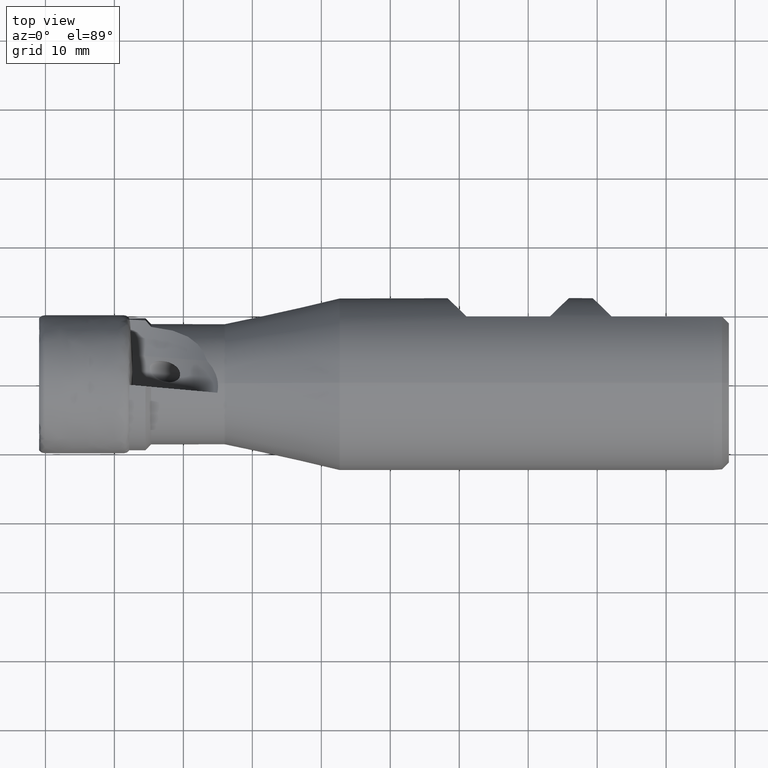
[diagram: clean part render]
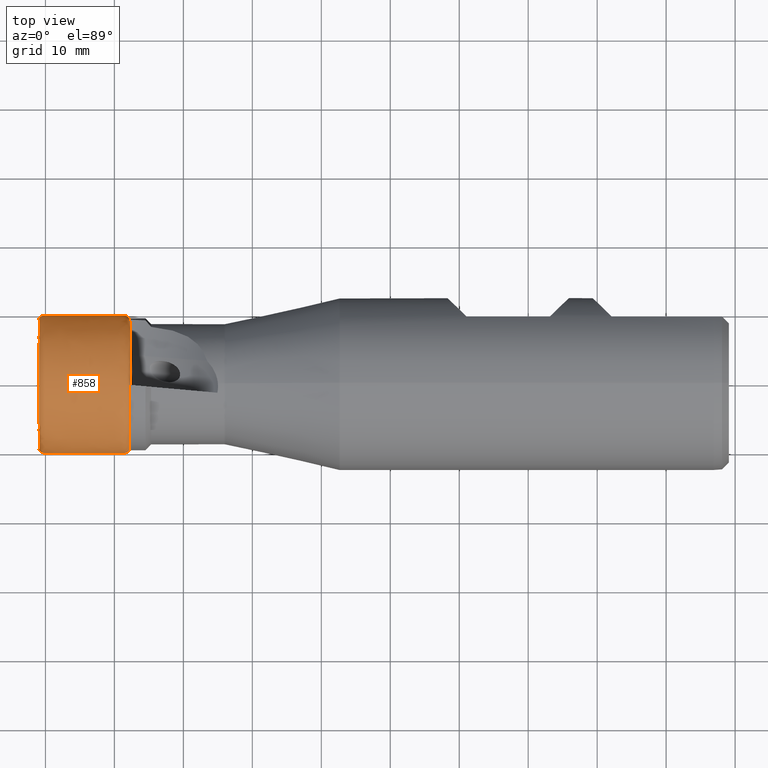
[diagram: same view with one face highlighted and labeled with its STEP entity id]
A machine part, top view. The second image highlights one B-rep face of the part: STEP entity #858.
In plain terms, the highlighted face is a freeform B-spline surface patch.
Its self-contained STEP definition (entity closure, byte-faithful):
#32 = CIRCLE ( 'NONE', #686, 7.691889727590408100 ) ;
#57 = CARTESIAN_POINT ( 'NONE',  ( -0.05130228346304541200, -10.00000000000000900, 0.0000000000000000000 ) ) ;
#59 = CARTESIAN_POINT ( 'NONE',  ( -0.5466303632215991900, -9.919945795277909500, 0.0000000000000000000 ) ) ;
#63 = CARTESIAN_POINT ( 'NONE',  ( -0.8445255185963951300, -9.661851155455348600, 0.0000000000000000000 ) ) ;
#64 = CARTESIAN_POINT ( 'NONE',  ( -0.7201086894092299000, -9.818137838423476500, 0.0000000000000000000 ) ) ;
#68 = CARTESIAN_POINT ( 'NONE',  ( 3.784776364722183000, -10.00000000000000400, 0.0000000000000000000 ) ) ;
#74 = CARTESIAN_POINT ( 'NONE',  ( -0.01417237308350225600, -10.00000000000000500, 0.0000000000000000000 ) ) ;
#75 = CARTESIAN_POINT ( 'NONE',  ( 11.41736329141492400, -10.00000000000000400, 0.0000000000000000000 ) ) ;
#77 = CARTESIAN_POINT ( 'NONE',  ( -0.9177133815105559300, -9.577886396108395300, 0.0000000000000000000 ) ) ;
#84 = DIRECTION ( 'NONE',  ( 1.000000000000000000, 0.0000000000000000000, 0.0000000000000000000 ) ) ;
#99 = CARTESIAN_POINT ( 'NONE',  ( 12.14808933975809100, 0.0000000000000000000, 0.0000000000000000000 ) ) ;
#108 = CARTESIAN_POINT ( 'NONE',  ( -0.3452762788435975200, -9.954841906388610400, 0.0000000000000000000 ) ) ;
#115 = CARTESIAN_POINT ( 'NONE',  ( -0.1255621042221242400, -10.00000000000000500, 0.0000000000000000000 ) ) ;
#117 = CARTESIAN_POINT ( 'NONE',  ( -0.9058620806264562300, -8.316042971592716900, 0.0000000000000000000 ) ) ;
#121 = CARTESIAN_POINT ( 'NONE',  ( -0.2346917990589160200, -9.969069199453155500, 0.0000000000000000000 ) ) ;
#143 = DIRECTION ( 'NONE',  ( 0.0000000000000000000, 0.0000000000000000000, 1.000000000000000000 ) ) ;
#154 = CARTESIAN_POINT ( 'NONE',  ( 11.48225309698175200, -9.969764362213865600, 0.0000000000000000000 ) ) ;
#155 = CARTESIAN_POINT ( 'NONE',  ( 11.47070769610457800, -9.970404803346081500, 0.0000000000000000000 ) ) ;
#158 = CARTESIAN_POINT ( 'NONE',  ( 11.44759087466905400, -9.971216621968771700, 0.0000000000000000000 ) ) ;
#171 = CARTESIAN_POINT ( 'NONE',  ( -0.9000000000000130100, -7.691889727590408100, 0.0000000000000000000 ) ) ;
#181 = CARTESIAN_POINT ( 'NONE',  ( -0.9179676607729816400, -9.604960269130515400, 0.0000000000000000000 ) ) ;
#183 = CARTESIAN_POINT ( 'NONE',  ( -0.8692782993972447700, -9.629646146713087200, 0.0000000000000000000 ) ) ;
#197 = CARTESIAN_POINT ( 'NONE',  ( -0.9117241612528992300, -8.940196215595026500, 0.0000000000000000000 ) ) ;
#198 = CARTESIAN_POINT ( 'NONE',  ( -0.9175862418793429000, -9.564349459597332600, 0.0000000000000000000 ) ) ;
#214 = CARTESIAN_POINT ( 'NONE',  ( 11.39423699069401300, -10.00000000000000400, 0.0000000000000000000 ) ) ;
#235 = CARTESIAN_POINT ( 'NONE',  ( 11.38267384033355300, -10.00000000000000200, 0.0000000000000000000 ) ) ;
#273 = CARTESIAN_POINT ( 'NONE',  ( 7.583725102527868200, -10.00000000000000200, 0.0000000000000000000 ) ) ;
#276 = CARTESIAN_POINT ( 'NONE',  ( 12.00018036387650600, -9.815041897302331000, 0.0000000000000000000 ) ) ;
#286 = CARTESIAN_POINT ( 'NONE',  ( 11.75980453034533800, -9.954368157602008400, 0.0000000000000000000 ) ) ;
#300 = CARTESIAN_POINT ( 'NONE',  ( -0.8529570140672502200, -9.651259899688664500, 0.0000000000000000000 ) ) ;
#301 = CARTESIAN_POINT ( 'NONE',  ( 12.14808933975809100, -9.580000000000005400, 0.0000000000000000000 ) ) ;
#303 = CARTESIAN_POINT ( 'NONE',  ( -0.3086917194308283500, -9.961182273678144100, 0.0000000000000000000 ) ) ;
#366 = EDGE_LOOP ( 'NONE', ( #1300, #1244, #1308, #1265, #1203, #1299, #1223, #1269 ) ) ;
#488 =( BOUNDED_SURFACE ( )  B_SPLINE_SURFACE ( 3, 3, ( 
 ( #2492, #2386, #2385, #2383 ),
 ( #2380, #2381, #2379, #2514 ),
 ( #2519, #2517, #2513, #2523 ),
 ( #2522, #2395, #2526, #2391 ),
 ( #2389, #2527, #2529, #2531 ),
 ( #2534, #2525, #2524, #2390 ),
 ( #2516, #2637, #2635, #2634 ),
 ( #2905, #2947, #2944, #2954 ),
 ( #2958, #2961, #2911, #2875 ),
 ( #2951, #2825, #2811, #2876 ),
 ( #2670, #2649, #2866, #2752 ),
 ( #2737, #2718, #2807, #2795 ),
 ( #2779, #2833, #2837, #2908 ),
 ( #2869, #2873, #2877, #2883 ),
 ( #2851, #2856, #2784, #2781 ),
 ( #2772, #2806, #2797, #2796 ),
 ( #2844, #2889, #2812, #2909 ),
 ( #2675, #2676, #2659, #2747 ),
 ( #2750, #2661, #2655, #2660 ),
 ( #2733, #2735, #2738, #2653 ),
 ( #2723, #2667, #2764, #2924 ),
 ( #2720, #2753, #2762, #2761 ),
 ( #2701, #2704, #2707, #2894 ),
 ( #2916, #2931, #2934, #2904 ),
 ( #2930, #2895, #2896, #2898 ),
 ( #2899, #2900, #2933, #2882 ),
 ( #2880, #2902, #2887, #2886 ),
 ( #2885, #2855, #2853, #2852 ),
 ( #2860, #2859, #2857, #2865 ),
 ( #2864, #2863, #2874, #2867 ),
 ( #2868, #2878, #2879, #2872 ),
 ( #2828, #2827, #2826, #2832 ),
 ( #2831, #2830, #2836, #2835 ),
 ( #2834, #2839, #2840, #2841 ),
 ( #2881, #2891, #2907, #2818 ),
 ( #2845, #2846, #2800, #2799 ),
 ( #2804, #2783, #2787, #2791 ),
 ( #2767, #2771, #2775, #2756 ),
 ( #2759, #2763, #2741, #2745 ),
 ( #2748, #2722, #2726, #2730 ),
 ( #2706, #2710, #2714, #2690 ),
 ( #2694, #2698, #2674, #2678 ),
 ( #2682, #2658, #2662, #2666 ),
 ( #2871, #2850, #2654, #2862 ),
 ( #2870, #2842, #2843, #2815 ),
 ( #2854, #2816, #2838, #2821 ) ),
 .UNSPECIFIED., .F., .F., .F. ) 
 B_SPLINE_SURFACE_WITH_KNOTS ( ( 4, 3, 1, 1, 3, 3, 1, 1, 3, 3, 1, 1, 3, 3, 1, 1, 3, 1, 1, 3, 1, 1, 3, 4 ),
 ( 4, 4 ),
 ( 0.0000000000000000000, 0.05717233915428161100, 0.05841232041330309700, 0.05965230167232458300, 0.06089228293134606900, 0.07844484726710043700, 0.08176935253101479100, 0.08509385779492914500, 0.08841836305884349900, 0.4285652943893162900, 0.4296006255777793400, 0.4306359567662424400, 0.4316712879547055000, 0.4571860780026526500, 0.4587064572872698300, 0.4602268365718870100, 0.4617472158565041900, 0.4633482898806259900, 0.4649493639047477800, 0.4665504379288695800, 0.4696628735702409500, 0.4727753092116123700, 0.4758877448529837400, 0.5000000000000000000 ),
 ( 0.0000000000000000000, 1.000000000000000000 ),
 .UNSPECIFIED. ) 
 GEOMETRIC_REPRESENTATION_ITEM ( )  RATIONAL_B_SPLINE_SURFACE ( (
 ( 1.000000000000000000, 0.3333333333333334300, 0.3333333333333334300, 1.000000000000000000),
 ( 1.000000000000000000, 0.3333333333333334300, 0.3333333333333334300, 1.000000000000000000),
 ( 1.000000000000000000, 0.3333333333333334300, 0.3333333333333334300, 1.000000000000000000),
 ( 1.000000000000000000, 0.3333333333333334300, 0.3333333333333334300, 1.000000000000000000),
 ( 1.000000000000000000, 0.3333333333333334300, 0.3333333333333334300, 1.000000000000000000),
 ( 1.000000000000000000, 0.3333333333333334300, 0.3333333333333334300, 1.000000000000000000),
 ( 1.000000000000000000, 0.3333333333333334300, 0.3333333333333334300, 1.000000000000000000),
 ( 1.000000000000000000, 0.3333333333333334300, 0.3333333333333334300, 1.000000000000000000),
 ( 1.000000000000000000, 0.3333333333333334300, 0.3333333333333334300, 1.000000000000000000),
 ( 0.9592922465192552700, 0.3197640821730851600, 0.3197640821730851600, 0.9592922465192552700),
 ( 0.9592922465192552700, 0.3197640821730851600, 0.3197640821730851600, 0.9592922465192552700),
 ( 1.000000000000000000, 0.3333333333333334300, 0.3333333333333334300, 1.000000000000000000),
 ( 1.000000000000000000, 0.3333333333333334300, 0.3333333333333334300, 1.000000000000000000),
 ( 1.000000000000000000, 0.3333333333333334300, 0.3333333333333334300, 1.000000000000000000),
 ( 1.000000000000000000, 0.3333333333333334300, 0.3333333333333334300, 1.000000000000000000),
 ( 1.000000000000000000, 0.3333333333333334300, 0.3333333333333334300, 1.000000000000000000),
 ( 1.000000000000000000, 0.3333333333333334300, 0.3333333333333334300, 1.000000000000000000),
 ( 1.000000000000000000, 0.3333333333333334300, 0.3333333333333334300, 1.000000000000000000),
 ( 1.000000000000000000, 0.3333333333333334300, 0.3333333333333334300, 1.000000000000000000),
 ( 1.000000000000000000, 0.3333333333333334300, 0.3333333333333334300, 1.000000000000000000),
 ( 1.000000000000000000, 0.3333333333333334300, 0.3333333333333334300, 1.000000000000000000),
 ( 1.000000000000000000, 0.3333333333333334300, 0.3333333333333334300, 1.000000000000000000),
 ( 1.000000000000000000, 0.3333333333333334300, 0.3333333333333334300, 1.000000000000000000),
 ( 1.000000000000000000, 0.3333333333333334300, 0.3333333333333334300, 1.000000000000000000),
 ( 1.000000000000000000, 0.3333333333333334300, 0.3333333333333334300, 1.000000000000000000),
 ( 0.9085046528676121700, 0.3028348842892041300, 0.3028348842892041300, 0.9085046528676121700),
 ( 0.9085046528676121700, 0.3028348842892041300, 0.3028348842892041300, 0.9085046528676121700),
 ( 1.000000000000000000, 0.3333333333333334300, 0.3333333333333334300, 1.000000000000000000),
 ( 1.000000000000000000, 0.3333333333333334300, 0.3333333333333334300, 1.000000000000000000),
 ( 1.000000000000000000, 0.3333333333333334300, 0.3333333333333334300, 1.000000000000000000),
 ( 1.000000000000000000, 0.3333333333333334300, 0.3333333333333334300, 1.000000000000000000),
 ( 1.000000000000000000, 0.3333333333333334300, 0.3333333333333334300, 1.000000000000000000),
 ( 1.000000000000000000, 0.3333333333333334300, 0.3333333333333334300, 1.000000000000000000),
 ( 1.000000000000000000, 0.3333333333333334300, 0.3333333333333334300, 1.000000000000000000),
 ( 1.000000000000000000, 0.3333333333333334300, 0.3333333333333334300, 1.000000000000000000),
 ( 1.000000000000000000, 0.3333333333333334300, 0.3333333333333334300, 1.000000000000000000),
 ( 1.000000000000000000, 0.3333333333333334300, 0.3333333333333334300, 1.000000000000000000),
 ( 1.000000000000000000, 0.3333333333333334300, 0.3333333333333334300, 1.000000000000000000),
 ( 1.000000000000000000, 0.3333333333333334300, 0.3333333333333334300, 1.000000000000000000),
 ( 1.000000000000000000, 0.3333333333333334300, 0.3333333333333334300, 1.000000000000000000),
 ( 1.000000000000000000, 0.3333333333333334300, 0.3333333333333334300, 1.000000000000000000),
 ( 1.000000000000000000, 0.3333333333333334300, 0.3333333333333334300, 1.000000000000000000),
 ( 1.000000000000000000, 0.3333333333333334300, 0.3333333333333334300, 1.000000000000000000),
 ( 1.000000000000000000, 0.3333333333333334300, 0.3333333333333334300, 1.000000000000000000),
 ( 1.000000000000000000, 0.3333333333333334300, 0.3333333333333334300, 1.000000000000000000),
 ( 1.000000000000000000, 0.3333333333333334300, 0.3333333333333334300, 1.000000000000000000) ) ) 
 REPRESENTATION_ITEM ( '' )  SURFACE ( )  );
#497 =( BOUNDED_CURVE ( )  B_SPLINE_CURVE ( 3, ( #1563, #1570, #1446, #1594, #1424, #1460, #1531, #1741, #1440, #1412, #1717, #1492, #1480, #1650, #1669, #1691, #1484, #1481, #1615, #1748, #1578, #1585, #1610, #1589, #1592, #1625, #1629, #1596 ),
 .UNSPECIFIED., .F., .F. ) 
 B_SPLINE_CURVE_WITH_KNOTS ( ( 4, 3, 1, 1, 3, 3, 1, 1, 3, 3, 1, 1, 3, 4 ),
 ( 0.0000000000000000000, 0.05717233915428161100, 0.05841232041330309000, 0.05965230167232458300, 0.06089228293134606900, 0.07844484726710043700, 0.08176935253101479100, 0.08509385779492914500, 0.08841836305884349900, 0.4285652943893162900, 0.4296006255777793400, 0.4306359567662424400, 0.4316712879547055000, 0.4545212329180997000 ),
 .UNSPECIFIED. ) 
 CURVE ( )  GEOMETRIC_REPRESENTATION_ITEM ( )  RATIONAL_B_SPLINE_CURVE ( ( 1.000000000000000000, 1.000000000000000000, 1.000000000000000000, 1.000000000000000000, 1.000000000000000000, 1.000000000000000000, 1.000000000000000000, 1.000000000000000000, 1.000000000000000000, 0.9592922465192552700, 0.9592922465192552700, 1.000000000000000000, 1.000000000000000000, 1.000000000000000000, 1.000000000000000000, 1.000000000000000000, 1.000000000000000000, 1.000000000000000000, 1.000000000000000000, 1.000000000000000000, 1.000000000000000000, 1.000000000000000000, 1.000000000000000000, 1.000000000000000000, 1.000000000000000000, 0.9180607152771802500, 0.9095027181423788200, 0.9743260085955957100 ) ) 
 REPRESENTATION_ITEM ( '' )  );
#658 = AXIS2_PLACEMENT_3D ( 'NONE', #2185, #2143, #2141 ) ;
#673 = AXIS2_PLACEMENT_3D ( 'NONE', #3141, #3146, #3150 ) ;
#686 = AXIS2_PLACEMENT_3D ( 'NONE', #988, #958, #1006 ) ;
#858 = ADVANCED_FACE ( 'NONE', ( #934 ), #488, .T. ) ;
#873 = AXIS2_PLACEMENT_3D ( 'NONE', #99, #84, #143 ) ;
#934 = FACE_OUTER_BOUND ( 'NONE', #366, .T. ) ;
#958 = DIRECTION ( 'NONE',  ( -1.000000000000000000, -0.0000000000000000000, -0.0000000000000000000 ) ) ;
#988 = CARTESIAN_POINT ( 'NONE',  ( -0.9000000000000127900, 0.0000000000000000000, 0.0000000000000000000 ) ) ;
#990 = CARTESIAN_POINT ( 'NONE',  ( 12.14808933975809100, 9.580000000000005400, 1.173211633583280400E-015 ) ) ;
#1006 = DIRECTION ( 'NONE',  ( -2.819078824275204300E-017, -1.000000000000000000, 0.0000000000000000000 ) ) ;
#1060 = CARTESIAN_POINT ( 'NONE',  ( -0.9000000000000127900, 7.691889727590409900, 1.083315806288077500E-015 ) ) ;
#1061 = CARTESIAN_POINT ( 'NONE',  ( 12.14808933975809100, -0.2624710534119722400, 9.576403758516077500 ) ) ;
#1078 = CARTESIAN_POINT ( 'NONE',  ( 12.14808933975809100, -0.2624710534119722400, 9.576403758516077500 ) ) ;
#1103 = CARTESIAN_POINT ( 'NONE',  ( 12.35750454105835900, 7.793913043053199100, 2.199466215513528900 ) ) ;
#1114 = CARTESIAN_POINT ( 'NONE',  ( 12.14808933975809100, 9.335224908344882200, 2.151737881484960800 ) ) ;
#1122 = CARTESIAN_POINT ( 'NONE',  ( 12.33825656940876300, -0.2791085301805383800, 8.344126689408248900 ) ) ;
#1124 = CARTESIAN_POINT ( 'NONE',  ( 12.35750454105840700, -0.2807925094957496900, 8.093447208851234400 ) ) ;
#1130 = CARTESIAN_POINT ( 'NONE',  ( 12.31900708730482200, -0.2774244187176975700, 8.594806036670627600 ) ) ;
#1133 = CARTESIAN_POINT ( 'NONE',  ( -0.9000000000000130100, -7.691889727590408100, 0.0000000000000000000 ) ) ;
#1142 = CARTESIAN_POINT ( 'NONE',  ( 12.29013113033507700, -0.2748980998343821800, 8.970824904558520900 ) ) ;
#1144 = CARTESIAN_POINT ( 'NONE',  ( 12.28149211013503000, -0.2741422835029217500, 9.096251566123804400 ) ) ;
#1147 = CARTESIAN_POINT ( 'NONE',  ( 12.20954323931557200, -0.2678475729527626800, 9.466671077645834500 ) ) ;
#1155 = CARTESIAN_POINT ( 'NONE',  ( 12.25060463190608600, -0.2714399793130200500, 9.346920180570029000 ) ) ;
#1157 = CARTESIAN_POINT ( 'NONE',  ( 12.26548165082141800, -0.2727415498151379800, 9.284122231715176800 ) ) ;
#1182 = CARTESIAN_POINT ( 'NONE',  ( 12.18167041668293600, -0.2654090169519021700, 9.522939563627524300 ) ) ;
#1191 = CARTESIAN_POINT ( 'NONE',  ( 12.35750454105840700, -0.2807925094957496900, 8.093447208851234400 ) ) ;
#1197 = CARTESIAN_POINT ( 'NONE',  ( 12.14808933975809100, -9.580000000000005400, 0.0000000000000000000 ) ) ;
#1203 = ORIENTED_EDGE ( 'NONE', *, *, #1834, .T. ) ;
#1223 = ORIENTED_EDGE ( 'NONE', *, *, #1794, .F. ) ;
#1244 = ORIENTED_EDGE ( 'NONE', *, *, #1837, .F. ) ;
#1265 = ORIENTED_EDGE ( 'NONE', *, *, #1671, .F. ) ;
#1269 = ORIENTED_EDGE ( 'NONE', *, *, #1410, .F. ) ;
#1299 = ORIENTED_EDGE ( 'NONE', *, *, #1783, .T. ) ;
#1300 = ORIENTED_EDGE ( 'NONE', *, *, #1327, .F. ) ;
#1308 = ORIENTED_EDGE ( 'NONE', *, *, #1773, .T. ) ;
#1327 = EDGE_CURVE ( 'NONE', #1947, #2002, #497, .T. ) ;
#1410 = EDGE_CURVE ( 'NONE', #2002, #1962, #2038, .T. ) ;
#1412 = CARTESIAN_POINT ( 'NONE',  ( -0.7201086894092299000, 9.818137838423476500, 1.202375107741282500E-015 ) ) ;
#1424 = CARTESIAN_POINT ( 'NONE',  ( -0.9177133815105559300, 9.577886396108395300, 1.172952791759112400E-015 ) ) ;
#1440 = CARTESIAN_POINT ( 'NONE',  ( -0.8445255185963951300, 9.661851155455348600, 1.183235509136654900E-015 ) ) ;
#1446 = CARTESIAN_POINT ( 'NONE',  ( -0.9117241612528992300, 8.940196215595026500, 1.094858267917773200E-015 ) ) ;
#1460 = CARTESIAN_POINT ( 'NONE',  ( -0.9179676607729816400, 9.604960269130515400, 1.176268384952818600E-015 ) ) ;
#1480 = CARTESIAN_POINT ( 'NONE',  ( -0.3086917194308283500, 9.961182273678144100, 1.219892998718329200E-015 ) ) ;
#1481 = CARTESIAN_POINT ( 'NONE',  ( 3.784776364722183000, 10.00000000000000400, 1.224646799147353700E-015 ) ) ;
#1484 = CARTESIAN_POINT ( 'NONE',  ( -0.01417237308350225600, 10.00000000000000500, 1.224646799147354000E-015 ) ) ;
#1492 = CARTESIAN_POINT ( 'NONE',  ( -0.3452762788435975200, 9.954841906388610400, 1.219116527667674800E-015 ) ) ;
#1531 = CARTESIAN_POINT ( 'NONE',  ( -0.8692782993972447700, 9.629646146713087200, 1.179291533049382700E-015 ) ) ;
#1563 = CARTESIAN_POINT ( 'NONE',  ( -0.9000000000000127900, 7.691889727590409900, 1.083315806288077500E-015 ) ) ;
#1570 = CARTESIAN_POINT ( 'NONE',  ( -0.9058620806264562300, 8.316042971592716900, 1.018421540673286300E-015 ) ) ;
#1578 = CARTESIAN_POINT ( 'NONE',  ( 11.39423699069401300, 10.00000000000000400, 1.224646799147353700E-015 ) ) ;
#1585 = CARTESIAN_POINT ( 'NONE',  ( 11.41736329141492400, 10.00000000000000400, 1.224646799147353700E-015 ) ) ;
#1589 = CARTESIAN_POINT ( 'NONE',  ( 11.47070769610457800, 9.970404803346081500, 1.221022432862117600E-015 ) ) ;
#1592 = CARTESIAN_POINT ( 'NONE',  ( 11.48225309698175200, 9.969764362213865600, 1.220944001443856400E-015 ) ) ;
#1594 = CARTESIAN_POINT ( 'NONE',  ( -0.9175862418793429000, 9.564349459597332600, 1.171294995162259100E-015 ) ) ;
#1596 = CARTESIAN_POINT ( 'NONE',  ( 12.14808933975809100, 9.580000000000005400, 1.173211633583280400E-015 ) ) ;
#1610 = CARTESIAN_POINT ( 'NONE',  ( 11.44759087466905400, 9.971216621968771700, 1.221121851969893800E-015 ) ) ;
#1615 = CARTESIAN_POINT ( 'NONE',  ( 7.583725102527868200, 10.00000000000000200, 1.224646799147353500E-015 ) ) ;
#1625 = CARTESIAN_POINT ( 'NONE',  ( 11.75980453034533800, 9.954368157602008400, 1.219058510174163500E-015 ) ) ;
#1629 = CARTESIAN_POINT ( 'NONE',  ( 12.00018036387650600, 9.815041897302331000, 1.201995964302846500E-015 ) ) ;
#1650 = CARTESIAN_POINT ( 'NONE',  ( -0.2346917990589160200, 9.969069199453155500, 1.220858868558877400E-015 ) ) ;
#1669 = CARTESIAN_POINT ( 'NONE',  ( -0.1255621042221242400, 10.00000000000000500, 1.224646799147354000E-015 ) ) ;
#1671 = EDGE_CURVE ( 'NONE', #1958, #1881, #2071, .T. ) ;
#1691 = CARTESIAN_POINT ( 'NONE',  ( -0.05130228346304541200, 10.00000000000000900, 1.224646799147354400E-015 ) ) ;
#1717 = CARTESIAN_POINT ( 'NONE',  ( -0.5466303632215991900, 9.919945795277909500, 1.214842986590233600E-015 ) ) ;
#1741 = CARTESIAN_POINT ( 'NONE',  ( -0.8529570140672502200, 9.651259899688664500, 1.181938454389292800E-015 ) ) ;
#1748 = CARTESIAN_POINT ( 'NONE',  ( 11.38267384033355300, 10.00000000000000200, 1.224646799147353500E-015 ) ) ;
#1773 = EDGE_CURVE ( 'NONE', #1941, #1881, #2974, .T. ) ;
#1783 = EDGE_CURVE ( 'NONE', #1874, #1966, #2074, .T. ) ;
#1794 = EDGE_CURVE ( 'NONE', #1962, #1966, #2986, .T. ) ;
#1834 = EDGE_CURVE ( 'NONE', #1958, #1874, #3006, .T. ) ;
#1837 = EDGE_CURVE ( 'NONE', #1941, #1947, #32, .T. ) ;
#1874 = VERTEX_POINT ( 'NONE', #1191 ) ;
#1881 = VERTEX_POINT ( 'NONE', #1197 ) ;
#1941 = VERTEX_POINT ( 'NONE', #1133 ) ;
#1947 = VERTEX_POINT ( 'NONE', #1060 ) ;
#1958 = VERTEX_POINT ( 'NONE', #1078 ) ;
#1962 = VERTEX_POINT ( 'NONE', #1114 ) ;
#1966 = VERTEX_POINT ( 'NONE', #1103 ) ;
#2002 = VERTEX_POINT ( 'NONE', #990 ) ;
#2038 = CIRCLE ( 'NONE', #658, 9.580000000000005400 ) ;
#2071 = CIRCLE ( 'NONE', #873, 9.580000000000005400 ) ;
#2074 = CIRCLE ( 'NONE', #673, 8.098316624820908400 ) ;
#2141 = DIRECTION ( 'NONE',  ( 0.0000000000000000000, 4.440892098500626200E-015, 1.000000000000000000 ) ) ;
#2143 = DIRECTION ( 'NONE',  ( 1.000000000000000000, 0.0000000000000000000, 0.0000000000000000000 ) ) ;
#2185 = CARTESIAN_POINT ( 'NONE',  ( 12.14808933975809100, 0.0000000000000000000, 0.0000000000000000000 ) ) ;
#2379 = CARTESIAN_POINT ( 'NONE',  ( -0.9058620806264562300, 8.316042971592715100, 16.63208594318543000 ) ) ;
#2380 = CARTESIAN_POINT ( 'NONE',  ( -0.9058620806264562300, -8.316042971592716900, 0.0000000000000000000 ) ) ;
#2381 = CARTESIAN_POINT ( 'NONE',  ( -0.9058620806264562300, -8.316042971592716900, 16.63208594318543000 ) ) ;
#2383 = CARTESIAN_POINT ( 'NONE',  ( -0.9000000000000130100, 7.691889727590409000, 9.419848134288001900E-016 ) ) ;
#2385 = CARTESIAN_POINT ( 'NONE',  ( -0.9000000000000130100, 7.691889727590408100, 15.38377945518081800 ) ) ;
#2386 = CARTESIAN_POINT ( 'NONE',  ( -0.9000000000000130100, -7.691889727590410800, 15.38377945518081600 ) ) ;
#2389 = CARTESIAN_POINT ( 'NONE',  ( -0.9177133815105559300, -9.577886396108395300, 0.0000000000000000000 ) ) ;
#2390 = CARTESIAN_POINT ( 'NONE',  ( -0.9179676607729816400, 9.604960269130515400, 1.176268384952818600E-015 ) ) ;
#2391 = CARTESIAN_POINT ( 'NONE',  ( -0.9175862418793429000, 9.564349459597332600, 1.171294995162259100E-015 ) ) ;
#2395 = CARTESIAN_POINT ( 'NONE',  ( -0.9175862418793430100, -9.564349459597332600, 19.12869891919466200 ) ) ;
#2492 = CARTESIAN_POINT ( 'NONE',  ( -0.9000000000000130100, -7.691889727590409000, 0.0000000000000000000 ) ) ;
#2513 = CARTESIAN_POINT ( 'NONE',  ( -0.9117241612528991200, 8.940196215595024800, 17.88039243119005000 ) ) ;
#2514 = CARTESIAN_POINT ( 'NONE',  ( -0.9058620806264562300, 8.316042971592716900, 1.018421540673286300E-015 ) ) ;
#2516 = CARTESIAN_POINT ( 'NONE',  ( -0.8692782993972447700, -9.629646146713087200, 0.0000000000000000000 ) ) ;
#2517 = CARTESIAN_POINT ( 'NONE',  ( -0.9117241612528991200, -8.940196215595026500, 17.88039243119005000 ) ) ;
#2519 = CARTESIAN_POINT ( 'NONE',  ( -0.9117241612528992300, -8.940196215595026500, 0.0000000000000000000 ) ) ;
#2522 = CARTESIAN_POINT ( 'NONE',  ( -0.9175862418793429000, -9.564349459597332600, 0.0000000000000000000 ) ) ;
#2523 = CARTESIAN_POINT ( 'NONE',  ( -0.9117241612528992300, 8.940196215595026500, 1.094858267917773200E-015 ) ) ;
#2524 = CARTESIAN_POINT ( 'NONE',  ( -0.9179676607729816400, 9.604960269130515400, 19.20992053826103100 ) ) ;
#2525 = CARTESIAN_POINT ( 'NONE',  ( -0.9179676607729816400, -9.604960269130515400, 19.20992053826103100 ) ) ;
#2526 = CARTESIAN_POINT ( 'NONE',  ( -0.9175862418793430100, 9.564349459597330800, 19.12869891919466200 ) ) ;
#2527 = CARTESIAN_POINT ( 'NONE',  ( -0.9177133815105560400, -9.577886396108395300, 19.15577279221678700 ) ) ;
#2529 = CARTESIAN_POINT ( 'NONE',  ( -0.9177133815105560400, 9.577886396108393500, 19.15577279221678700 ) ) ;
#2531 = CARTESIAN_POINT ( 'NONE',  ( -0.9177133815105559300, 9.577886396108395300, 1.172952791759112400E-015 ) ) ;
#2534 = CARTESIAN_POINT ( 'NONE',  ( -0.9179676607729816400, -9.604960269130515400, 0.0000000000000000000 ) ) ;
#2634 = CARTESIAN_POINT ( 'NONE',  ( -0.8692782993972447700, 9.629646146713087200, 1.179291533049382700E-015 ) ) ;
#2635 = CARTESIAN_POINT ( 'NONE',  ( -0.8692782993972446600, 9.629646146713085400, 19.25929229342617100 ) ) ;
#2637 = CARTESIAN_POINT ( 'NONE',  ( -0.8692782993972446600, -9.629646146713087200, 19.25929229342617100 ) ) ;
#2649 = CARTESIAN_POINT ( 'NONE',  ( -0.5466303632215990800, -9.919945795277907800, 19.83989159055581200 ) ) ;
#2653 = CARTESIAN_POINT ( 'NONE',  ( 11.38267384033355300, 10.00000000000000200, 1.224646799147353500E-015 ) ) ;
#2654 = CARTESIAN_POINT ( 'NONE',  ( 12.31668535598656800, 8.629489271564144900, 17.25897854312829000 ) ) ;
#2655 = CARTESIAN_POINT ( 'NONE',  ( 7.583725102527868200, 10.00000000000000000, 20.00000000000000000 ) ) ;
#2658 = CARTESIAN_POINT ( 'NONE',  ( 12.29627576345065000, -8.895075594935766700, 17.79015118987153000 ) ) ;
#2659 = CARTESIAN_POINT ( 'NONE',  ( 3.784776364722183000, 10.00000000000000200, 20.00000000000000400 ) ) ;
#2660 = CARTESIAN_POINT ( 'NONE',  ( 7.583725102527868200, 10.00000000000000200, 1.224646799147353500E-015 ) ) ;
#2661 = CARTESIAN_POINT ( 'NONE',  ( 7.583725102527868200, -10.00000000000000200, 20.00000000000000000 ) ) ;
#2662 = CARTESIAN_POINT ( 'NONE',  ( 12.29627576345065000, 8.895075594935764900, 17.79015118987153000 ) ) ;
#2666 = CARTESIAN_POINT ( 'NONE',  ( 12.29627576345064800, 8.895075594935766700, 1.089332585551182500E-015 ) ) ;
#2667 = CARTESIAN_POINT ( 'NONE',  ( 11.39423699069401300, -10.00000000000000400, 20.00000000000000400 ) ) ;
#2670 = CARTESIAN_POINT ( 'NONE',  ( -0.5466303632215991900, -9.919945795277909500, 0.0000000000000000000 ) ) ;
#2674 = CARTESIAN_POINT ( 'NONE',  ( 12.29364127145281100, 8.929357761148862600, 17.85871552229772500 ) ) ;
#2675 = CARTESIAN_POINT ( 'NONE',  ( 3.784776364722183000, -10.00000000000000400, 0.0000000000000000000 ) ) ;
#2676 = CARTESIAN_POINT ( 'NONE',  ( 3.784776364722183000, -10.00000000000000400, 20.00000000000000400 ) ) ;
#2678 = CARTESIAN_POINT ( 'NONE',  ( 12.29364127145281100, 8.929357761148864400, 1.093530940063253300E-015 ) ) ;
#2682 = CARTESIAN_POINT ( 'NONE',  ( 12.29627576345064800, -8.895075594935766700, 0.0000000000000000000 ) ) ;
#2690 = CARTESIAN_POINT ( 'NONE',  ( 12.28837228745713300, 8.997922093575059700, 1.101927649087394800E-015 ) ) ;
#2694 = CARTESIAN_POINT ( 'NONE',  ( 12.29364127145281100, -8.929357761148864400, 0.0000000000000000000 ) ) ;
#2698 = CARTESIAN_POINT ( 'NONE',  ( 12.29364127145281100, -8.929357761148864400, 17.85871552229772500 ) ) ;
#2701 = CARTESIAN_POINT ( 'NONE',  ( 11.44759087466905400, -9.971216621968771700, 0.0000000000000000000 ) ) ;
#2704 = CARTESIAN_POINT ( 'NONE',  ( 11.44759087466905200, -9.971216621968771700, 19.94243324393754000 ) ) ;
#2706 = CARTESIAN_POINT ( 'NONE',  ( 12.28837228745713300, -8.997922093575059700, 0.0000000000000000000 ) ) ;
#2707 = CARTESIAN_POINT ( 'NONE',  ( 11.44759087466905200, 9.971216621968769900, 19.94243324393754000 ) ) ;
#2710 = CARTESIAN_POINT ( 'NONE',  ( 12.28837228745713400, -8.997922093575057900, 17.99584418715011600 ) ) ;
#2714 = CARTESIAN_POINT ( 'NONE',  ( 12.28837228745713400, 8.997922093575057900, 17.99584418715011600 ) ) ;
#2718 = CARTESIAN_POINT ( 'NONE',  ( -0.3452762788435975200, -9.954841906388610400, 19.90968381277721700 ) ) ;
#2720 = CARTESIAN_POINT ( 'NONE',  ( 11.41736329141492400, -10.00000000000000400, 0.0000000000000000000 ) ) ;
#2722 = CARTESIAN_POINT ( 'NONE',  ( 12.28046881146361900, -9.100768592214352600, 18.20153718442870200 ) ) ;
#2723 = CARTESIAN_POINT ( 'NONE',  ( 11.39423699069401300, -10.00000000000000400, 0.0000000000000000000 ) ) ;
#2726 = CARTESIAN_POINT ( 'NONE',  ( 12.28046881146361900, 9.100768592214350900, 18.20153718442870200 ) ) ;
#2730 = CARTESIAN_POINT ( 'NONE',  ( 12.28046881146361700, 9.100768592214352600, 1.114522712623606900E-015 ) ) ;
#2733 = CARTESIAN_POINT ( 'NONE',  ( 11.38267384033355300, -10.00000000000000200, 0.0000000000000000000 ) ) ;
#2735 = CARTESIAN_POINT ( 'NONE',  ( 11.38267384033355300, -10.00000000000000200, 20.00000000000000000 ) ) ;
#2737 = CARTESIAN_POINT ( 'NONE',  ( -0.3452762788435975200, -9.954841906388610400, 0.0000000000000000000 ) ) ;
#2738 = CARTESIAN_POINT ( 'NONE',  ( 11.38267384033355300, 10.00000000000000000, 20.00000000000000000 ) ) ;
#2741 = CARTESIAN_POINT ( 'NONE',  ( 12.27519982746794400, 9.169332924640546200, 18.33866584928109200 ) ) ;
#2745 = CARTESIAN_POINT ( 'NONE',  ( 12.27519982746794200, 9.169332924640547900, 1.122919421647748600E-015 ) ) ;
#2747 = CARTESIAN_POINT ( 'NONE',  ( 3.784776364722183000, 10.00000000000000400, 1.224646799147353700E-015 ) ) ;
#2748 = CARTESIAN_POINT ( 'NONE',  ( 12.28046881146361700, -9.100768592214352600, 0.0000000000000000000 ) ) ;
#2750 = CARTESIAN_POINT ( 'NONE',  ( 7.583725102527868200, -10.00000000000000200, 0.0000000000000000000 ) ) ;
#2752 = CARTESIAN_POINT ( 'NONE',  ( -0.5466303632215991900, 9.919945795277909500, 1.214842986590233600E-015 ) ) ;
#2753 = CARTESIAN_POINT ( 'NONE',  ( 11.41736329141492600, -10.00000000000000400, 20.00000000000000400 ) ) ;
#2756 = CARTESIAN_POINT ( 'NONE',  ( 12.27256533547009600, 9.203615090853645600, 1.127117776159819300E-015 ) ) ;
#2759 = CARTESIAN_POINT ( 'NONE',  ( 12.27519982746794200, -9.169332924640547900, 0.0000000000000000000 ) ) ;
#2761 = CARTESIAN_POINT ( 'NONE',  ( 11.41736329141492400, 10.00000000000000400, 1.224646799147353700E-015 ) ) ;
#2762 = CARTESIAN_POINT ( 'NONE',  ( 11.41736329141492600, 10.00000000000000200, 20.00000000000000400 ) ) ;
#2763 = CARTESIAN_POINT ( 'NONE',  ( 12.27519982746794400, -9.169332924640547900, 18.33866584928109200 ) ) ;
#2764 = CARTESIAN_POINT ( 'NONE',  ( 11.39423699069401300, 10.00000000000000200, 20.00000000000000400 ) ) ;
#2767 = CARTESIAN_POINT ( 'NONE',  ( 12.27256533547009600, -9.203615090853645600, 0.0000000000000000000 ) ) ;
#2771 = CARTESIAN_POINT ( 'NONE',  ( 12.27256533547009800, -9.203615090853645600, 18.40723018170728800 ) ) ;
#2772 = CARTESIAN_POINT ( 'NONE',  ( -0.05130228346304541200, -10.00000000000000900, 0.0000000000000000000 ) ) ;
#2775 = CARTESIAN_POINT ( 'NONE',  ( 12.27256533547009800, 9.203615090853643800, 18.40723018170728800 ) ) ;
#2779 = CARTESIAN_POINT ( 'NONE',  ( -0.3086917194308283500, -9.961182273678144100, 0.0000000000000000000 ) ) ;
#2781 = CARTESIAN_POINT ( 'NONE',  ( -0.1255621042221242400, 10.00000000000000500, 1.224646799147354000E-015 ) ) ;
#2783 = CARTESIAN_POINT ( 'NONE',  ( 12.27121012135789800, -9.221250246127160800, 18.44250049225432200 ) ) ;
#2784 = CARTESIAN_POINT ( 'NONE',  ( -0.1255621042221242400, 10.00000000000000400, 20.00000000000000700 ) ) ;
#2787 = CARTESIAN_POINT ( 'NONE',  ( 12.27121012135789800, 9.221250246127160800, 18.44250049225432200 ) ) ;
#2791 = CARTESIAN_POINT ( 'NONE',  ( 12.27121012135789800, 9.221250246127162600, 1.129277459805637200E-015 ) ) ;
#2795 = CARTESIAN_POINT ( 'NONE',  ( -0.3452762788435975200, 9.954841906388610400, 1.219116527667674800E-015 ) ) ;
#2796 = CARTESIAN_POINT ( 'NONE',  ( -0.05130228346304541200, 10.00000000000000900, 1.224646799147354400E-015 ) ) ;
#2797 = CARTESIAN_POINT ( 'NONE',  ( -0.05130228346304540500, 10.00000000000000700, 20.00000000000001400 ) ) ;
#2799 = CARTESIAN_POINT ( 'NONE',  ( 12.26849969313350600, 9.256520556674200200, 1.133596827097273600E-015 ) ) ;
#2800 = CARTESIAN_POINT ( 'NONE',  ( 12.26849969313350800, 9.256520556674200200, 18.51304111334840000 ) ) ;
#2804 = CARTESIAN_POINT ( 'NONE',  ( 12.27121012135789800, -9.221250246127162600, 0.0000000000000000000 ) ) ;
#2806 = CARTESIAN_POINT ( 'NONE',  ( -0.05130228346304540500, -10.00000000000000900, 20.00000000000001400 ) ) ;
#2807 = CARTESIAN_POINT ( 'NONE',  ( -0.3452762788435975200, 9.954841906388608700, 19.90968381277721700 ) ) ;
#2811 = CARTESIAN_POINT ( 'NONE',  ( -0.7201086894092297900, 9.818137838423474800, 19.63627567684695000 ) ) ;
#2812 = CARTESIAN_POINT ( 'NONE',  ( -0.01417237308350225700, 10.00000000000000400, 20.00000000000000700 ) ) ;
#2815 = CARTESIAN_POINT ( 'NONE',  ( 12.33709494852248600, 8.363902948192526700, 1.024282697388309000E-015 ) ) ;
#2816 = CARTESIAN_POINT ( 'NONE',  ( 12.35750454105840400, -8.098316624820908400, 16.19663324964181000 ) ) ;
#2818 = CARTESIAN_POINT ( 'NONE',  ( 12.25925665769921300, 9.309274718897205100, 1.140057348688083800E-015 ) ) ;
#2821 = CARTESIAN_POINT ( 'NONE',  ( 12.35750454105840400, 8.098316624820908400, 9.917577533068721600E-016 ) ) ;
#2825 = CARTESIAN_POINT ( 'NONE',  ( -0.7201086894092297900, -9.818137838423476500, 19.63627567684695000 ) ) ;
#2826 = CARTESIAN_POINT ( 'NONE',  ( 12.24060999056938600, 9.376597265124173600, 18.75319453024834700 ) ) ;
#2827 = CARTESIAN_POINT ( 'NONE',  ( 12.24060999056938600, -9.376597265124177100, 18.75319453024834700 ) ) ;
#2828 = CARTESIAN_POINT ( 'NONE',  ( 12.24060999056938600, -9.376597265124177100, 0.0000000000000000000 ) ) ;
#2830 = CARTESIAN_POINT ( 'NONE',  ( 12.24509319639323500, -9.360410949938740900, 18.72082189987747800 ) ) ;
#2831 = CARTESIAN_POINT ( 'NONE',  ( 12.24509319639323500, -9.360410949938740900, 0.0000000000000000000 ) ) ;
#2832 = CARTESIAN_POINT ( 'NONE',  ( 12.24060999056938600, 9.376597265124177100, 1.148301982762814700E-015 ) ) ;
#2833 = CARTESIAN_POINT ( 'NONE',  ( -0.3086917194308282900, -9.961182273678144100, 19.92236454735628100 ) ) ;
#2834 = CARTESIAN_POINT ( 'NONE',  ( 12.24981435016189500, -9.343365539591559400, 0.0000000000000000000 ) ) ;
#2835 = CARTESIAN_POINT ( 'NONE',  ( 12.24509319639323500, 9.360410949938740900, 1.146319730854631500E-015 ) ) ;
#2836 = CARTESIAN_POINT ( 'NONE',  ( 12.24509319639323500, 9.360410949938739100, 18.72082189987747800 ) ) ;
#2837 = CARTESIAN_POINT ( 'NONE',  ( -0.3086917194308282900, 9.961182273678140600, 19.92236454735628100 ) ) ;
#2838 = CARTESIAN_POINT ( 'NONE',  ( 12.35750454105840400, 8.098316624820904900, 16.19663324964181000 ) ) ;
#2839 = CARTESIAN_POINT ( 'NONE',  ( 12.24981435016189700, -9.343365539591559400, 18.68673107918311500 ) ) ;
#2840 = CARTESIAN_POINT ( 'NONE',  ( 12.24981435016189700, 9.343365539591557600, 18.68673107918311500 ) ) ;
#2841 = CARTESIAN_POINT ( 'NONE',  ( 12.24981435016189500, 9.343365539591559400, 1.144232270132448600E-015 ) ) ;
#2842 = CARTESIAN_POINT ( 'NONE',  ( 12.33709494852248600, -8.363902948192528400, 16.72780589638505300 ) ) ;
#2843 = CARTESIAN_POINT ( 'NONE',  ( 12.33709494852248600, 8.363902948192526700, 16.72780589638505300 ) ) ;
#2844 = CARTESIAN_POINT ( 'NONE',  ( -0.01417237308350225600, -10.00000000000000500, 0.0000000000000000000 ) ) ;
#2845 = CARTESIAN_POINT ( 'NONE',  ( 12.26849969313350600, -9.256520556674200200, 0.0000000000000000000 ) ) ;
#2846 = CARTESIAN_POINT ( 'NONE',  ( 12.26849969313350800, -9.256520556674200200, 18.51304111334840000 ) ) ;
#2850 = CARTESIAN_POINT ( 'NONE',  ( 12.31668535598656800, -8.629489271564146700, 17.25897854312829000 ) ) ;
#2851 = CARTESIAN_POINT ( 'NONE',  ( -0.1255621042221242400, -10.00000000000000500, 0.0000000000000000000 ) ) ;
#2852 = CARTESIAN_POINT ( 'NONE',  ( 12.19158816992421600, 9.501786275846736600, 1.163633214889795500E-015 ) ) ;
#2853 = CARTESIAN_POINT ( 'NONE',  ( 12.19158816992421600, 9.501786275846733100, 19.00357255169346600 ) ) ;
#2854 = CARTESIAN_POINT ( 'NONE',  ( 12.35750454105840400, -8.098316624820908400, 0.0000000000000000000 ) ) ;
#2855 = CARTESIAN_POINT ( 'NONE',  ( 12.19158816992421600, -9.501786275846736600, 19.00357255169346600 ) ) ;
#2856 = CARTESIAN_POINT ( 'NONE',  ( -0.1255621042221242400, -10.00000000000000500, 20.00000000000000700 ) ) ;
#2857 = CARTESIAN_POINT ( 'NONE',  ( 12.19894512306223600, 9.486687561521792500, 18.97337512304358500 ) ) ;
#2859 = CARTESIAN_POINT ( 'NONE',  ( 12.19894512306223600, -9.486687561521792500, 18.97337512304358500 ) ) ;
#2860 = CARTESIAN_POINT ( 'NONE',  ( 12.19894512306223400, -9.486687561521792500, 0.0000000000000000000 ) ) ;
#2862 = CARTESIAN_POINT ( 'NONE',  ( 12.31668535598656800, 8.629489271564146700, 1.056807641469745600E-015 ) ) ;
#2863 = CARTESIAN_POINT ( 'NONE',  ( 12.21273829109502000, -9.456041496785269700, 18.91208299357053600 ) ) ;
#2864 = CARTESIAN_POINT ( 'NONE',  ( 12.21273829109502000, -9.456041496785269700, 0.0000000000000000000 ) ) ;
#2865 = CARTESIAN_POINT ( 'NONE',  ( 12.19894512306223400, 9.486687561521792500, 1.161784155672867300E-015 ) ) ;
#2866 = CARTESIAN_POINT ( 'NONE',  ( -0.5466303632215990800, 9.919945795277906000, 19.83989159055581200 ) ) ;
#2867 = CARTESIAN_POINT ( 'NONE',  ( 12.21273829109502000, 9.456041496785269700, 1.158031095164262700E-015 ) ) ;
#2868 = CARTESIAN_POINT ( 'NONE',  ( 12.23164357892168200, -9.408969895495046000, 0.0000000000000000000 ) ) ;
#2869 = CARTESIAN_POINT ( 'NONE',  ( -0.2346917990589160200, -9.969069199453155500, 0.0000000000000000000 ) ) ;
#2870 = CARTESIAN_POINT ( 'NONE',  ( 12.33709494852248600, -8.363902948192526700, 0.0000000000000000000 ) ) ;
#2871 = CARTESIAN_POINT ( 'NONE',  ( 12.31668535598656800, -8.629489271564146700, 0.0000000000000000000 ) ) ;
#2872 = CARTESIAN_POINT ( 'NONE',  ( 12.23164357892168200, 9.408969895495046000, 1.152266486579181500E-015 ) ) ;
#2873 = CARTESIAN_POINT ( 'NONE',  ( -0.2346917990589160200, -9.969069199453155500, 19.93813839890630700 ) ) ;
#2874 = CARTESIAN_POINT ( 'NONE',  ( 12.21273829109502000, 9.456041496785268000, 18.91208299357053600 ) ) ;
#2875 = CARTESIAN_POINT ( 'NONE',  ( -0.8445255185963951300, 9.661851155455348600, 1.183235509136654900E-015 ) ) ;
#2876 = CARTESIAN_POINT ( 'NONE',  ( -0.7201086894092299000, 9.818137838423476500, 1.202375107741282300E-015 ) ) ;
#2877 = CARTESIAN_POINT ( 'NONE',  ( -0.2346917990589160200, 9.969069199453153700, 19.93813839890630700 ) ) ;
#2878 = CARTESIAN_POINT ( 'NONE',  ( 12.23164357892168200, -9.408969895495046000, 18.81793979099008900 ) ) ;
#2879 = CARTESIAN_POINT ( 'NONE',  ( 12.23164357892168200, 9.408969895495044300, 18.81793979099008900 ) ) ;
#2880 = CARTESIAN_POINT ( 'NONE',  ( 12.05569085085695700, -9.780689071559637100, 0.0000000000000000000 ) ) ;
#2881 = CARTESIAN_POINT ( 'NONE',  ( 12.25925665769921300, -9.309274718897205100, 0.0000000000000000000 ) ) ;
#2882 = CARTESIAN_POINT ( 'NONE',  ( 11.79543348886344700, 9.952391764510448300, 1.218816471826819800E-015 ) ) ;
#2883 = CARTESIAN_POINT ( 'NONE',  ( -0.2346917990589160200, 9.969069199453155500, 1.220858868558877400E-015 ) ) ;
#2885 = CARTESIAN_POINT ( 'NONE',  ( 12.19158816992421600, -9.501786275846736600, 0.0000000000000000000 ) ) ;
#2886 = CARTESIAN_POINT ( 'NONE',  ( 12.05569085085695700, 9.780689071559637100, 1.197788956494100900E-015 ) ) ;
#2887 = CARTESIAN_POINT ( 'NONE',  ( 12.05569085085695800, 9.780689071559635300, 19.56137814311927100 ) ) ;
#2889 = CARTESIAN_POINT ( 'NONE',  ( -0.01417237308350225700, -10.00000000000000500, 20.00000000000000700 ) ) ;
#2891 = CARTESIAN_POINT ( 'NONE',  ( 12.25925665769921300, -9.309274718897205100, 18.61854943779440700 ) ) ;
#2894 = CARTESIAN_POINT ( 'NONE',  ( 11.44759087466905400, 9.971216621968771700, 1.221121851969893800E-015 ) ) ;
#2895 = CARTESIAN_POINT ( 'NONE',  ( 11.48225309698175200, -9.969764362213865600, 19.93952872442772800 ) ) ;
#2896 = CARTESIAN_POINT ( 'NONE',  ( 11.48225309698175200, 9.969764362213863900, 19.93952872442772800 ) ) ;
#2898 = CARTESIAN_POINT ( 'NONE',  ( 11.48225309698175200, 9.969764362213865600, 1.220944001443856400E-015 ) ) ;
#2899 = CARTESIAN_POINT ( 'NONE',  ( 11.79543348886344700, -9.952391764510448300, 0.0000000000000000000 ) ) ;
#2900 = CARTESIAN_POINT ( 'NONE',  ( 11.79543348886344500, -9.952391764510448300, 19.90478352902089300 ) ) ;
#2902 = CARTESIAN_POINT ( 'NONE',  ( 12.05569085085695800, -9.780689071559638800, 19.56137814311927100 ) ) ;
#2904 = CARTESIAN_POINT ( 'NONE',  ( 11.47070769610457800, 9.970404803346081500, 1.221022432862117600E-015 ) ) ;
#2905 = CARTESIAN_POINT ( 'NONE',  ( -0.8529570140672502200, -9.651259899688664500, 0.0000000000000000000 ) ) ;
#2907 = CARTESIAN_POINT ( 'NONE',  ( 12.25925665769921300, 9.309274718897203400, 18.61854943779440700 ) ) ;
#2908 = CARTESIAN_POINT ( 'NONE',  ( -0.3086917194308283500, 9.961182273678144100, 1.219892998718329200E-015 ) ) ;
#2909 = CARTESIAN_POINT ( 'NONE',  ( -0.01417237308350225600, 10.00000000000000500, 1.224646799147354000E-015 ) ) ;
#2911 = CARTESIAN_POINT ( 'NONE',  ( -0.8445255185963951300, 9.661851155455346800, 19.32370231091069400 ) ) ;
#2916 = CARTESIAN_POINT ( 'NONE',  ( 11.47070769610457800, -9.970404803346081500, 0.0000000000000000000 ) ) ;
#2924 = CARTESIAN_POINT ( 'NONE',  ( 11.39423699069401300, 10.00000000000000400, 1.224646799147353700E-015 ) ) ;
#2930 = CARTESIAN_POINT ( 'NONE',  ( 11.48225309698175200, -9.969764362213865600, 0.0000000000000000000 ) ) ;
#2931 = CARTESIAN_POINT ( 'NONE',  ( 11.47070769610457600, -9.970404803346079700, 19.94080960669215900 ) ) ;
#2933 = CARTESIAN_POINT ( 'NONE',  ( 11.79543348886344500, 9.952391764510446500, 19.90478352902089300 ) ) ;
#2934 = CARTESIAN_POINT ( 'NONE',  ( 11.47070769610457600, 9.970404803346079700, 19.94080960669215900 ) ) ;
#2944 = CARTESIAN_POINT ( 'NONE',  ( -0.8529570140672502200, 9.651259899688662700, 19.30251979937732500 ) ) ;
#2947 = CARTESIAN_POINT ( 'NONE',  ( -0.8529570140672502200, -9.651259899688664500, 19.30251979937732500 ) ) ;
#2951 = CARTESIAN_POINT ( 'NONE',  ( -0.7201086894092299000, -9.818137838423476500, 0.0000000000000000000 ) ) ;
#2954 = CARTESIAN_POINT ( 'NONE',  ( -0.8529570140672502200, 9.651259899688664500, 1.181938454389292800E-015 ) ) ;
#2958 = CARTESIAN_POINT ( 'NONE',  ( -0.8445255185963951300, -9.661851155455348600, 0.0000000000000000000 ) ) ;
#2961 = CARTESIAN_POINT ( 'NONE',  ( -0.8445255185963951300, -9.661851155455348600, 19.32370231091069400 ) ) ;
#2974 =( BOUNDED_CURVE ( )  B_SPLINE_CURVE ( 3, ( #171, #117, #197, #198, #77, #181, #183, #300, #63, #64, #59, #108, #303, #121, #115, #57, #74, #68, #273, #235, #214, #75, #158, #155, #154, #286, #276, #301 ),
 .UNSPECIFIED., .F., .T. ) 
 B_SPLINE_CURVE_WITH_KNOTS ( ( 4, 3, 1, 1, 3, 3, 1, 1, 3, 3, 1, 1, 3, 4 ),
 ( 0.0000000000000000000, 0.05717233915428161100, 0.05841232041330309000, 0.05965230167232458300, 0.06089228293134606900, 0.07844484726710043700, 0.08176935253101479100, 0.08509385779492914500, 0.08841836305884349900, 0.4285652943893162900, 0.4296006255777793400, 0.4306359567662424400, 0.4316712879547055000, 0.4545212329180997000 ),
 .UNSPECIFIED. ) 
 CURVE ( )  GEOMETRIC_REPRESENTATION_ITEM ( )  RATIONAL_B_SPLINE_CURVE ( ( 1.000000000000000000, 1.000000000000000000, 1.000000000000000000, 1.000000000000000000, 1.000000000000000000, 1.000000000000000000, 1.000000000000000000, 1.000000000000000000, 1.000000000000000000, 0.9592922465192552700, 0.9592922465192552700, 1.000000000000000000, 1.000000000000000000, 1.000000000000000000, 1.000000000000000000, 1.000000000000000000, 1.000000000000000000, 1.000000000000000000, 1.000000000000000000, 1.000000000000000000, 1.000000000000000000, 1.000000000000000000, 1.000000000000000000, 1.000000000000000000, 1.000000000000000000, 0.9180607152771802500, 0.9095027181423788200, 0.9743260085955957100 ) ) 
 REPRESENTATION_ITEM ( '' )  );
#2986 = B_SPLINE_CURVE_WITH_KNOTS ( 'NONE', 3,
 ( #3024, #3238, #3018, #3021, #3249, #3225, #3260, #3223, #3220, #3215 ),
 .UNSPECIFIED., .F., .F.,
 ( 4, 2, 2, 2, 4 ),
 ( 0.0001602028114527275200, 0.0003541536202329839000, 0.0005481044290132402900, 0.0009360060465737530700, 0.001711809281694773300 ),
 .UNSPECIFIED. ) ;
#3006 = B_SPLINE_CURVE_WITH_KNOTS ( 'NONE', 3,
 ( #1061, #1182, #1147, #1155, #1157, #1144, #1142, #1130, #1122, #1124 ),
 .UNSPECIFIED., .F., .F.,
 ( 4, 2, 2, 2, 4 ),
 ( 6.377572838653119000E-005, 0.0002522947845496948700, 0.0004408138407128585100, 0.0008178519530391853000, 0.001571928177691839500 ),
 .UNSPECIFIED. ) ;
#3018 = CARTESIAN_POINT ( 'NONE',  ( 12.20943570861929400, 9.220462662369650200, 2.161116278138896600 ) ) ;
#3021 = CARTESIAN_POINT ( 'NONE',  ( 12.25000585324980500, 9.098318557367147000, 2.168023841386519800 ) ) ;
#3024 = CARTESIAN_POINT ( 'NONE',  ( 12.14808933975809100, 9.335224908344882200, 2.151737881484960800 ) ) ;
#3141 = CARTESIAN_POINT ( 'NONE',  ( 12.35750454105840400, 0.0000000000000000000, 0.0000000000000000000 ) ) ;
#3146 = DIRECTION ( 'NONE',  ( -1.000000000000000000, -0.0000000000000000000, -0.0000000000000000000 ) ) ;
#3150 = DIRECTION ( 'NONE',  ( 0.0000000000000000000, -1.000000000000000000, 0.0000000000000000000 ) ) ;
#3215 = CARTESIAN_POINT ( 'NONE',  ( 12.35750454105835900, 7.793913043053199100, 2.199466215513528900 ) ) ;
#3220 = CARTESIAN_POINT ( 'NONE',  ( 12.33829851494570700, 8.055350580336105200, 2.193258600396879000 ) ) ;
#3223 = CARTESIAN_POINT ( 'NONE',  ( 12.31900639309055000, 8.316784826594863800, 2.187175792387279700 ) ) ;
#3225 = CARTESIAN_POINT ( 'NONE',  ( 12.28165916831382500, 8.839755724653434400, 2.175489355008769300 ) ) ;
#3238 = CARTESIAN_POINT ( 'NONE',  ( 12.18130651279295600, 9.279917119674337300, 2.156676667587085200 ) ) ;
#3249 = CARTESIAN_POINT ( 'NONE',  ( 12.26486228069173400, 9.035656423663883900, 2.170815873247700100 ) ) ;
#3260 = CARTESIAN_POINT ( 'NONE',  ( 12.28996936579587600, 8.708933169708879900, 2.178244789000627800 ) ) ;